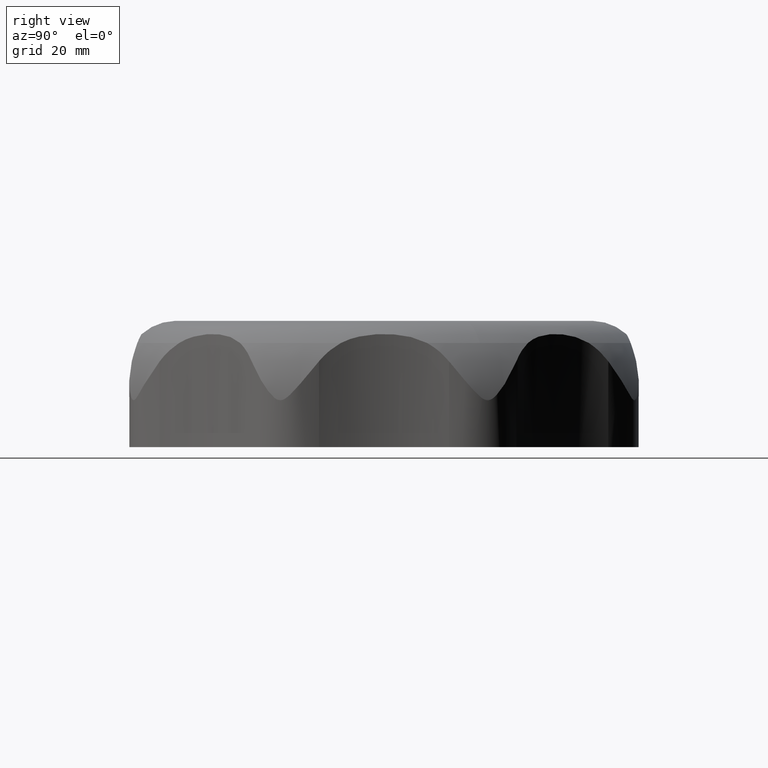
[diagram: clean part render]
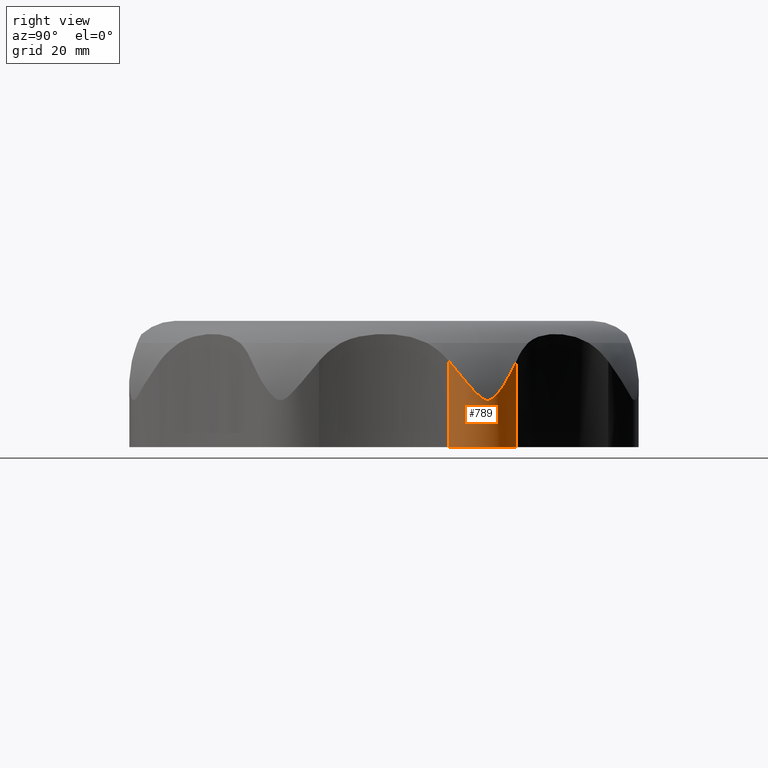
[diagram: same view with one face highlighted and labeled with its STEP entity id]
A machine part, right view. The second image highlights one B-rep face of the part: STEP entity #789.
In plain terms, the highlighted cylindrical surface (partial cylindrical patch) has radius 11 mm, axis along (0, 0, -1).
Its self-contained STEP definition (entity closure, byte-faithful):
#789 = ADVANCED_FACE( '', ( #3777 ), #3778, .T. );
#3777 = FACE_OUTER_BOUND( '', #8485, .T. );
#3778 = CYLINDRICAL_SURFACE( '', #8486, 11.0000000000000 );
#8485 = EDGE_LOOP( '', ( #19166, #19167, #19168, #19169 ) );
#8486 = AXIS2_PLACEMENT_3D( '', #19170, #19171, #19172 );
#19166 = ORIENTED_EDGE( '', *, *, #34943, .F. );
#19167 = ORIENTED_EDGE( '', *, *, #31584, .T. );
#19168 = ORIENTED_EDGE( '', *, *, #34973, .T. );
#19169 = ORIENTED_EDGE( '', *, *, #33732, .T. );
#19170 = CARTESIAN_POINT( '', ( 38.0204367624887, 15.7485805543714, -151.431544236596 ) );
#19171 = DIRECTION( '', ( 0.000000000000000, 0.000000000000000, -1.00000000000000 ) );
#19172 = DIRECTION( '', ( 0.467628644481239, 0.883925025587939, 0.000000000000000 ) );
#31584 = EDGE_CURVE( '', #38232, #38233, #38234, .T. );
#33732 = EDGE_CURVE( '', #42424, #42428, #42430, .T. );
#34943 = EDGE_CURVE( '', #38232, #42428, #44264, .T. );
#34973 = EDGE_CURVE( '', #38233, #42424, #44313, .T. );
#38232 = VERTEX_POINT( '', #49313 );
#38233 = VERTEX_POINT( '', #49314 );
#38234 = CIRCLE( '', #49315, 11.0000000000000 );
#42424 = VERTEX_POINT( '', #60226 );
#42428 = VERTEX_POINT( '', #60235 );
#42430 = B_SPLINE_CURVE_WITH_KNOTS( '', 3, ( #60242, #60243, #60244, #60245, #60246, #60247, #60248, #60249, #60250, #60251, #60252, #60253, #60254, #60255, #60256, #60257, #60258, #60259, #60260, #60261, #60262, #60263, #60264, #60265, #60266, #60267, #60268, #60269, #60270, #60271, #60272, #60273, #60274, #60275, #60276, #60277 ), .UNSPECIFIED., .F., .F., ( 4, 2, 2, 2, 2, 2, 2, 2, 2, 2, 2, 2, 2, 2, 2, 2, 2, 4 ), ( 3.95665783971984E-007, 0.00270470619711235, 0.00540901672844073, 0.00676117199410491, 0.00811332725976910, 0.00878940489260119, 0.00946548252543328, 0.0101415601582654, 0.0104795989746814, 0.0108176377910974, 0.0114937154239295, 0.0121697930567616, 0.0128458706895937, 0.0135219483224258, 0.0148741035880899, 0.0162262588537541, 0.0189305693850824, 0.0216348799164107 ), .UNSPECIFIED. );
#44264 = LINE( '', #64866, #64867 );
#44313 = LINE( '', #65122, #65123 );
#49313 = CARTESIAN_POINT( '', ( 48.5330571801669, 12.5105546196676, -0.000342076785356249 ) );
#49314 = CARTESIAN_POINT( '', ( 43.1643518517822, 25.4717558358388, -0.000342076785297268 ) );
#49315 = AXIS2_PLACEMENT_3D( '', #77666, #77667, #77668 );
#60226 = CARTESIAN_POINT( '', ( 43.1643518517822, 25.4717558358388, 16.5159049165594 ) );
#60235 = CARTESIAN_POINT( '', ( 48.5330571801669, 12.5105546196676, 16.5159049165593 ) );
#60242 = CARTESIAN_POINT( '', ( 43.1643518517823, 25.4717558358388, 16.5159049165595 ) );
#60243 = CARTESIAN_POINT( '', ( 43.6872267584841, 25.1951359000116, 15.8238550649498 ) );
#60244 = CARTESIAN_POINT( '', ( 44.1792912709583, 24.8812229393079, 15.1323374324275 ) );
#60245 = CARTESIAN_POINT( '', ( 45.1058734687131, 24.1826325147118, 13.7509064053831 ) );
#60246 = CARTESIAN_POINT( '', ( 45.5401600971490, 23.7984796481765, 13.0605547281432 ) );
#60247 = CARTESIAN_POINT( '', ( 46.1527782615054, 23.1615287098586, 12.0332554174411 ) );
#60248 = CARTESIAN_POINT( '', ( 46.3505236385600, 22.9390106090121, 11.6922432960779 ) );
#60249 = CARTESIAN_POINT( '', ( 46.7353730849068, 22.4673986520559, 11.0179341180075 ) );
#60250 = CARTESIAN_POINT( '', ( 46.9225530314954, 22.2183195939034, 10.6837538602597 ) );
#60251 = CARTESIAN_POINT( '', ( 47.1968512963806, 21.8165057046034, 10.2044144812322 ) );
#60252 = CARTESIAN_POINT( '', ( 47.2873775542174, 21.6776099088414, 10.0481218771772 ) );
#60253 = CARTESIAN_POINT( '', ( 47.4682090412078, 21.3849960547616, 9.74833327157696 ) );
#60254 = CARTESIAN_POINT( '', ( 47.5578351254962, 21.2324487009579, 9.60570996314896 ) );
#60255 = CARTESIAN_POINT( '', ( 47.7382408399465, 20.9060083334091, 9.34802898549209 ) );
#60256 = CARTESIAN_POINT( '', ( 47.8301912290688, 20.7299206861274, 9.23116472176497 ) );
#60257 = CARTESIAN_POINT( '', ( 47.9688105914183, 20.4433772710117, 9.10421430919058 ) );
#60258 = CARTESIAN_POINT( '', ( 48.0147910715978, 20.3448274880646, 9.07041021795557 ) );
#60259 = CARTESIAN_POINT( '', ( 48.1065190208652, 20.1398843025486, 9.02527685820868 ) );
#60260 = CARTESIAN_POINT( '', ( 48.1520465153864, 20.0338263332624, 9.01453423311466 ) );
#60261 = CARTESIAN_POINT( '', ( 48.2812746923317, 19.7192977766816, 9.02156999548038 ) );
#60262 = CARTESIAN_POINT( '', ( 48.3606790156380, 19.5066298229503, 9.08031374701736 ) );
#60263 = CARTESIAN_POINT( '', ( 48.4957701436143, 19.1117538643802, 9.26017119205755 ) );
#60264 = CARTESIAN_POINT( '', ( 48.5539905909909, 18.9232310997574, 9.38092108643968 ) );
#60265 = CARTESIAN_POINT( '', ( 48.6547001181997, 18.5675529246961, 9.64377776626900 ) );
#60266 = CARTESIAN_POINT( '', ( 48.6978095652372, 18.3985454490616, 9.78707980921612 ) );
#60267 = CARTESIAN_POINT( '', ( 48.7742306650336, 18.0690375381469, 10.0858599403976 ) );
#60268 = CARTESIAN_POINT( '', ( 48.8074514103569, 17.9087028760742, 10.2415490863350 ) );
#60269 = CARTESIAN_POINT( '', ( 48.8951810183337, 17.4347570582211, 10.7197156117930 ) );
#60270 = CARTESIAN_POINT( '', ( 48.9377290290546, 17.1283367008930, 11.0526071378854 ) );
#60271 = CARTESIAN_POINT( '', ( 48.9969392298324, 16.5279335179766, 11.7224584049364 ) );
#60272 = CARTESIAN_POINT( '', ( 49.0136506417488, 16.2330763535229, 12.0611497852151 ) );
#60273 = CARTESIAN_POINT( '', ( 49.0289734426221, 15.3560624524126, 13.0815420740231 ) );
#60274 = CARTESIAN_POINT( '', ( 48.9929790124237, 14.7812117405766, 13.7673594967639 ) );
#60275 = CARTESIAN_POINT( '', ( 48.8317028769582, 13.6393127073132, 15.1402118231613 ) );
#60276 = CARTESIAN_POINT( '', ( 48.7062269995181, 13.0727701841342, 15.8276654461444 ) );
#60277 = CARTESIAN_POINT( '', ( 48.5330571801670, 12.5105546196678, 16.5159049165594 ) );
#64866 = CARTESIAN_POINT( '', ( 48.5330571801669, 12.5105546196676, -151.431544236596 ) );
#64867 = VECTOR( '', #78625, 1000.00000000000 );
#65122 = CARTESIAN_POINT( '', ( 43.1643518517822, 25.4717558358388, -151.431544236596 ) );
#65123 = VECTOR( '', #78638, 1000.00000000000 );
#77666 = CARTESIAN_POINT( '', ( 38.0204367624887, 15.7485805543714, -0.000342076785297268 ) );
#77667 = DIRECTION( '', ( -3.31376091451462E-017, -8.00012654228307E-017, 1.00000000000000 ) );
#77668 = DIRECTION( '', ( 0.923879532511287, 0.382683432365090, 6.12303176911189E-017 ) );
#78625 = DIRECTION( '', ( 0.000000000000000, 0.000000000000000, 1.00000000000000 ) );
#78638 = DIRECTION( '', ( 0.000000000000000, 0.000000000000000, 1.00000000000000 ) );